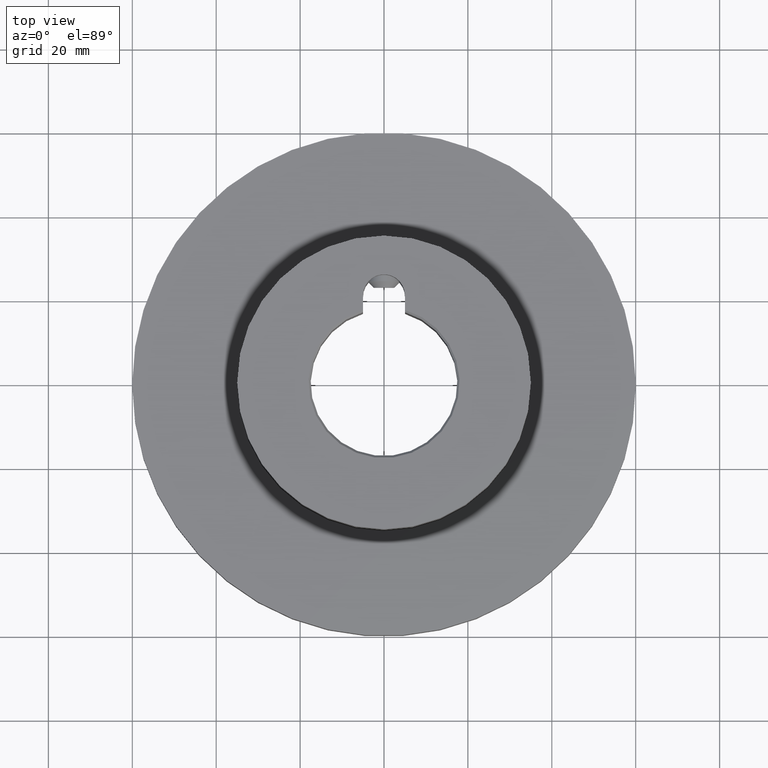
[diagram: clean part render]
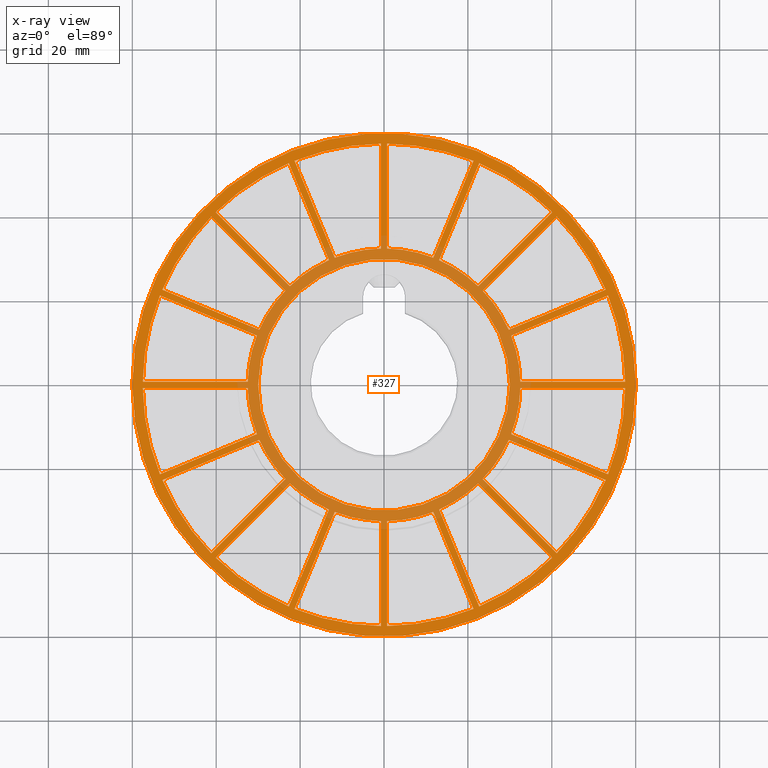
[diagram: x-ray — body ghosted, one internal face saturated and labeled with its STEP entity id]
A machine part, top view, then the same camera in x-ray: the body is ghosted and one INTERNAL B-rep face — a face not visible from any outside direction — is saturated and labeled: STEP entity #327.
In plain terms, the highlighted planar face has unit normal (0, 0, 1).
Its self-contained STEP definition (entity closure, byte-faithful):
#327 = ADVANCED_FACE( '', ( #528, #529, #530, #531, #532, #533, #534, #535, #536, #537, #538, #539, #540, #541, #542, #543, #544, #545 ), #546, .T. );
#528 = FACE_BOUND( '', #780, .T. );
#529 = FACE_BOUND( '', #781, .T. );
#530 = FACE_BOUND( '', #782, .T. );
#531 = FACE_BOUND( '', #783, .T. );
#532 = FACE_BOUND( '', #784, .T. );
#533 = FACE_BOUND( '', #785, .T. );
#534 = FACE_BOUND( '', #786, .T. );
#535 = FACE_BOUND( '', #787, .T. );
#536 = FACE_OUTER_BOUND( '', #788, .T. );
#537 = FACE_BOUND( '', #789, .T. );
#538 = FACE_BOUND( '', #790, .T. );
#539 = FACE_BOUND( '', #791, .T. );
#540 = FACE_BOUND( '', #792, .T. );
#541 = FACE_BOUND( '', #793, .T. );
#542 = FACE_BOUND( '', #794, .T. );
#543 = FACE_BOUND( '', #795, .T. );
#544 = FACE_BOUND( '', #796, .T. );
#545 = FACE_BOUND( '', #797, .T. );
#546 = PLANE( '', #798 );
#780 = EDGE_LOOP( '', ( #1147, #1148, #1149, #1150 ) );
#781 = EDGE_LOOP( '', ( #1151, #1152, #1153, #1154 ) );
#782 = EDGE_LOOP( '', ( #1155, #1156, #1157, #1158 ) );
#783 = EDGE_LOOP( '', ( #1159, #1160, #1161, #1162 ) );
#784 = EDGE_LOOP( '', ( #1163, #1164, #1165, #1166 ) );
#785 = EDGE_LOOP( '', ( #1167, #1168, #1169, #1170 ) );
#786 = EDGE_LOOP( '', ( #1171, #1172, #1173, #1174 ) );
#787 = EDGE_LOOP( '', ( #1175, #1176, #1177, #1178 ) );
#788 = EDGE_LOOP( '', ( #1179 ) );
#789 = EDGE_LOOP( '', ( #1180 ) );
#790 = EDGE_LOOP( '', ( #1181, #1182, #1183, #1184 ) );
#791 = EDGE_LOOP( '', ( #1185, #1186, #1187, #1188 ) );
#792 = EDGE_LOOP( '', ( #1189, #1190, #1191, #1192 ) );
#793 = EDGE_LOOP( '', ( #1193, #1194, #1195, #1196 ) );
#794 = EDGE_LOOP( '', ( #1197, #1198, #1199, #1200 ) );
#795 = EDGE_LOOP( '', ( #1201, #1202, #1203, #1204 ) );
#796 = EDGE_LOOP( '', ( #1205, #1206, #1207, #1208 ) );
#797 = EDGE_LOOP( '', ( #1209, #1210, #1211, #1212 ) );
#798 = AXIS2_PLACEMENT_3D( '', #1213, #1214, #1215 );
#1147 = ORIENTED_EDGE( '', *, *, #1870, .T. );
#1148 = ORIENTED_EDGE( '', *, *, #1871, .T. );
#1149 = ORIENTED_EDGE( '', *, *, #1872, .T. );
#1150 = ORIENTED_EDGE( '', *, *, #1873, .T. );
#1151 = ORIENTED_EDGE( '', *, *, #1874, .T. );
#1152 = ORIENTED_EDGE( '', *, *, #1875, .T. );
#1153 = ORIENTED_EDGE( '', *, *, #1876, .T. );
#1154 = ORIENTED_EDGE( '', *, *, #1877, .T. );
#1155 = ORIENTED_EDGE( '', *, *, #1878, .T. );
#1156 = ORIENTED_EDGE( '', *, *, #1879, .T. );
#1157 = ORIENTED_EDGE( '', *, *, #1880, .T. );
#1158 = ORIENTED_EDGE( '', *, *, #1881, .T. );
#1159 = ORIENTED_EDGE( '', *, *, #1882, .T. );
#1160 = ORIENTED_EDGE( '', *, *, #1883, .T. );
#1161 = ORIENTED_EDGE( '', *, *, #1884, .T. );
#1162 = ORIENTED_EDGE( '', *, *, #1885, .T. );
#1163 = ORIENTED_EDGE( '', *, *, #1886, .T. );
#1164 = ORIENTED_EDGE( '', *, *, #1887, .T. );
#1165 = ORIENTED_EDGE( '', *, *, #1888, .T. );
#1166 = ORIENTED_EDGE( '', *, *, #1889, .T. );
#1167 = ORIENTED_EDGE( '', *, *, #1890, .T. );
#1168 = ORIENTED_EDGE( '', *, *, #1891, .T. );
#1169 = ORIENTED_EDGE( '', *, *, #1892, .T. );
#1170 = ORIENTED_EDGE( '', *, *, #1893, .T. );
#1171 = ORIENTED_EDGE( '', *, *, #1894, .T. );
#1172 = ORIENTED_EDGE( '', *, *, #1895, .T. );
#1173 = ORIENTED_EDGE( '', *, *, #1896, .T. );
#1174 = ORIENTED_EDGE( '', *, *, #1897, .T. );
#1175 = ORIENTED_EDGE( '', *, *, #1898, .T. );
#1176 = ORIENTED_EDGE( '', *, *, #1899, .T. );
#1177 = ORIENTED_EDGE( '', *, *, #1900, .T. );
#1178 = ORIENTED_EDGE( '', *, *, #1901, .T. );
#1179 = ORIENTED_EDGE( '', *, *, #1864, .T. );
#1180 = ORIENTED_EDGE( '', *, *, #1902, .F. );
#1181 = ORIENTED_EDGE( '', *, *, #1903, .T. );
#1182 = ORIENTED_EDGE( '', *, *, #1904, .T. );
#1183 = ORIENTED_EDGE( '', *, *, #1905, .T. );
#1184 = ORIENTED_EDGE( '', *, *, #1906, .T. );
#1185 = ORIENTED_EDGE( '', *, *, #1907, .T. );
#1186 = ORIENTED_EDGE( '', *, *, #1908, .T. );
#1187 = ORIENTED_EDGE( '', *, *, #1909, .T. );
#1188 = ORIENTED_EDGE( '', *, *, #1910, .T. );
#1189 = ORIENTED_EDGE( '', *, *, #1911, .T. );
#1190 = ORIENTED_EDGE( '', *, *, #1912, .T. );
#1191 = ORIENTED_EDGE( '', *, *, #1913, .T. );
#1192 = ORIENTED_EDGE( '', *, *, #1914, .T. );
#1193 = ORIENTED_EDGE( '', *, *, #1915, .T. );
#1194 = ORIENTED_EDGE( '', *, *, #1916, .T. );
#1195 = ORIENTED_EDGE( '', *, *, #1917, .T. );
#1196 = ORIENTED_EDGE( '', *, *, #1918, .T. );
#1197 = ORIENTED_EDGE( '', *, *, #1919, .T. );
#1198 = ORIENTED_EDGE( '', *, *, #1920, .T. );
#1199 = ORIENTED_EDGE( '', *, *, #1921, .T. );
#1200 = ORIENTED_EDGE( '', *, *, #1922, .T. );
#1201 = ORIENTED_EDGE( '', *, *, #1923, .T. );
#1202 = ORIENTED_EDGE( '', *, *, #1924, .T. );
#1203 = ORIENTED_EDGE( '', *, *, #1925, .T. );
#1204 = ORIENTED_EDGE( '', *, *, #1926, .T. );
#1205 = ORIENTED_EDGE( '', *, *, #1927, .T. );
#1206 = ORIENTED_EDGE( '', *, *, #1928, .T. );
#1207 = ORIENTED_EDGE( '', *, *, #1929, .T. );
#1208 = ORIENTED_EDGE( '', *, *, #1930, .T. );
#1209 = ORIENTED_EDGE( '', *, *, #1867, .T. );
#1210 = ORIENTED_EDGE( '', *, *, #1931, .T. );
#1211 = ORIENTED_EDGE( '', *, *, #1932, .T. );
#1212 = ORIENTED_EDGE( '', *, *, #1869, .T. );
#1213 = CARTESIAN_POINT( '', ( 0.000000000000000, 0.000000000000000, 8.00000000000000 ) );
#1214 = DIRECTION( '', ( 0.000000000000000, 0.000000000000000, 1.00000000000000 ) );
#1215 = DIRECTION( '', ( 1.00000000000000, 0.000000000000000, 0.000000000000000 ) );
#1864 = EDGE_CURVE( '', #2205, #2205, #2206, .T. );
#1867 = EDGE_CURVE( '', #2207, #2209, #2211, .T. );
#1869 = EDGE_CURVE( '', #2212, #2207, #2214, .T. );
#1870 = EDGE_CURVE( '', #2215, #2216, #2217, .T. );
#1871 = EDGE_CURVE( '', #2216, #2218, #2219, .F. );
#1872 = EDGE_CURVE( '', #2218, #2220, #2221, .T. );
#1873 = EDGE_CURVE( '', #2220, #2215, #2222, .T. );
#1874 = EDGE_CURVE( '', #2223, #2224, #2225, .T. );
#1875 = EDGE_CURVE( '', #2224, #2226, #2227, .F. );
#1876 = EDGE_CURVE( '', #2226, #2228, #2229, .T. );
#1877 = EDGE_CURVE( '', #2228, #2223, #2230, .T. );
#1878 = EDGE_CURVE( '', #2231, #2232, #2233, .T. );
#1879 = EDGE_CURVE( '', #2232, #2234, #2235, .F. );
#1880 = EDGE_CURVE( '', #2234, #2236, #2237, .T. );
#1881 = EDGE_CURVE( '', #2236, #2231, #2238, .T. );
#1882 = EDGE_CURVE( '', #2239, #2240, #2241, .T. );
#1883 = EDGE_CURVE( '', #2240, #2242, #2243, .F. );
#1884 = EDGE_CURVE( '', #2242, #2244, #2245, .T. );
#1885 = EDGE_CURVE( '', #2244, #2239, #2246, .T. );
#1886 = EDGE_CURVE( '', #2247, #2248, #2249, .T. );
#1887 = EDGE_CURVE( '', #2248, #2250, #2251, .F. );
#1888 = EDGE_CURVE( '', #2250, #2252, #2253, .T. );
#1889 = EDGE_CURVE( '', #2252, #2247, #2254, .T. );
#1890 = EDGE_CURVE( '', #2255, #2256, #2257, .T. );
#1891 = EDGE_CURVE( '', #2256, #2258, #2259, .F. );
#1892 = EDGE_CURVE( '', #2258, #2260, #2261, .T. );
#1893 = EDGE_CURVE( '', #2260, #2255, #2262, .T. );
#1894 = EDGE_CURVE( '', #2263, #2264, #2265, .T. );
#1895 = EDGE_CURVE( '', #2264, #2266, #2267, .F. );
#1896 = EDGE_CURVE( '', #2266, #2268, #2269, .T. );
#1897 = EDGE_CURVE( '', #2268, #2263, #2270, .T. );
#1898 = EDGE_CURVE( '', #2271, #2272, #2273, .T. );
#1899 = EDGE_CURVE( '', #2272, #2274, #2275, .F. );
#1900 = EDGE_CURVE( '', #2274, #2276, #2277, .T. );
#1901 = EDGE_CURVE( '', #2276, #2271, #2278, .T. );
#1902 = EDGE_CURVE( '', #2279, #2279, #2280, .T. );
#1903 = EDGE_CURVE( '', #2281, #2282, #2283, .T. );
#1904 = EDGE_CURVE( '', #2282, #2284, #2285, .F. );
#1905 = EDGE_CURVE( '', #2284, #2286, #2287, .T. );
#1906 = EDGE_CURVE( '', #2286, #2281, #2288, .T. );
#1907 = EDGE_CURVE( '', #2289, #2290, #2291, .T. );
#1908 = EDGE_CURVE( '', #2290, #2292, #2293, .F. );
#1909 = EDGE_CURVE( '', #2292, #2294, #2295, .T. );
#1910 = EDGE_CURVE( '', #2294, #2289, #2296, .T. );
#1911 = EDGE_CURVE( '', #2297, #2298, #2299, .T. );
#1912 = EDGE_CURVE( '', #2298, #2300, #2301, .F. );
#1913 = EDGE_CURVE( '', #2300, #2302, #2303, .T. );
#1914 = EDGE_CURVE( '', #2302, #2297, #2304, .T. );
#1915 = EDGE_CURVE( '', #2305, #2306, #2307, .T. );
#1916 = EDGE_CURVE( '', #2306, #2308, #2309, .F. );
#1917 = EDGE_CURVE( '', #2308, #2310, #2311, .T. );
#1918 = EDGE_CURVE( '', #2310, #2305, #2312, .T. );
#1919 = EDGE_CURVE( '', #2313, #2314, #2315, .T. );
#1920 = EDGE_CURVE( '', #2314, #2316, #2317, .F. );
#1921 = EDGE_CURVE( '', #2316, #2318, #2319, .T. );
#1922 = EDGE_CURVE( '', #2318, #2313, #2320, .T. );
#1923 = EDGE_CURVE( '', #2321, #2322, #2323, .T. );
#1924 = EDGE_CURVE( '', #2322, #2324, #2325, .F. );
#1925 = EDGE_CURVE( '', #2324, #2326, #2327, .T. );
#1926 = EDGE_CURVE( '', #2326, #2321, #2328, .T. );
#1927 = EDGE_CURVE( '', #2329, #2330, #2331, .T. );
#1928 = EDGE_CURVE( '', #2330, #2332, #2333, .F. );
#1929 = EDGE_CURVE( '', #2332, #2334, #2335, .T. );
#1930 = EDGE_CURVE( '', #2334, #2329, #2336, .T. );
#1931 = EDGE_CURVE( '', #2209, #2337, #2338, .F. );
#1932 = EDGE_CURVE( '', #2337, #2212, #2339, .T. );
#2205 = VERTEX_POINT( '', #2810 );
#2206 = CIRCLE( '', #2811, 60.0000000000000 );
#2207 = VERTEX_POINT( '', #2812 );
#2209 = VERTEX_POINT( '', #2815 );
#2211 = LINE( '', #2818, #2819 );
#2212 = VERTEX_POINT( '', #2820 );
#2214 = CIRCLE( '', #2823, 32.5000000000000 );
#2215 = VERTEX_POINT( '', #2824 );
#2216 = VERTEX_POINT( '', #2825 );
#2217 = LINE( '', #2826, #2827 );
#2218 = VERTEX_POINT( '', #2828 );
#2219 = CIRCLE( '', #2829, 57.5000000000000 );
#2220 = VERTEX_POINT( '', #2830 );
#2221 = LINE( '', #2831, #2832 );
#2222 = CIRCLE( '', #2833, 32.5000000000000 );
#2223 = VERTEX_POINT( '', #2834 );
#2224 = VERTEX_POINT( '', #2835 );
#2225 = LINE( '', #2836, #2837 );
#2226 = VERTEX_POINT( '', #2838 );
#2227 = CIRCLE( '', #2839, 57.5000000000000 );
#2228 = VERTEX_POINT( '', #2840 );
#2229 = LINE( '', #2841, #2842 );
#2230 = CIRCLE( '', #2843, 32.5000000000000 );
#2231 = VERTEX_POINT( '', #2844 );
#2232 = VERTEX_POINT( '', #2845 );
#2233 = LINE( '', #2846, #2847 );
#2234 = VERTEX_POINT( '', #2848 );
#2235 = CIRCLE( '', #2849, 57.5000000000000 );
#2236 = VERTEX_POINT( '', #2850 );
#2237 = LINE( '', #2851, #2852 );
#2238 = CIRCLE( '', #2853, 32.5000000000000 );
#2239 = VERTEX_POINT( '', #2854 );
#2240 = VERTEX_POINT( '', #2855 );
#2241 = LINE( '', #2856, #2857 );
#2242 = VERTEX_POINT( '', #2858 );
#2243 = CIRCLE( '', #2859, 57.5000000000000 );
#2244 = VERTEX_POINT( '', #2860 );
#2245 = LINE( '', #2861, #2862 );
#2246 = CIRCLE( '', #2863, 32.5000000000000 );
#2247 = VERTEX_POINT( '', #2864 );
#2248 = VERTEX_POINT( '', #2865 );
#2249 = LINE( '', #2866, #2867 );
#2250 = VERTEX_POINT( '', #2868 );
#2251 = CIRCLE( '', #2869, 57.5000000000000 );
#2252 = VERTEX_POINT( '', #2870 );
#2253 = LINE( '', #2871, #2872 );
#2254 = CIRCLE( '', #2873, 32.5000000000000 );
#2255 = VERTEX_POINT( '', #2874 );
#2256 = VERTEX_POINT( '', #2875 );
#2257 = LINE( '', #2876, #2877 );
#2258 = VERTEX_POINT( '', #2878 );
#2259 = CIRCLE( '', #2879, 57.5000000000000 );
#2260 = VERTEX_POINT( '', #2880 );
#2261 = LINE( '', #2881, #2882 );
#2262 = CIRCLE( '', #2883, 32.5000000000000 );
#2263 = VERTEX_POINT( '', #2884 );
#2264 = VERTEX_POINT( '', #2885 );
#2265 = LINE( '', #2886, #2887 );
#2266 = VERTEX_POINT( '', #2888 );
#2267 = CIRCLE( '', #2889, 57.5000000000000 );
#2268 = VERTEX_POINT( '', #2890 );
#2269 = LINE( '', #2891, #2892 );
#2270 = CIRCLE( '', #2893, 32.5000000000000 );
#2271 = VERTEX_POINT( '', #2894 );
#2272 = VERTEX_POINT( '', #2895 );
#2273 = LINE( '', #2896, #2897 );
#2274 = VERTEX_POINT( '', #2898 );
#2275 = CIRCLE( '', #2899, 57.5000000000000 );
#2276 = VERTEX_POINT( '', #2900 );
#2277 = LINE( '', #2901, #2902 );
#2278 = CIRCLE( '', #2903, 32.5000000000000 );
#2279 = VERTEX_POINT( '', #2904 );
#2280 = CIRCLE( '', #2905, 30.0000000000000 );
#2281 = VERTEX_POINT( '', #2906 );
#2282 = VERTEX_POINT( '', #2907 );
#2283 = LINE( '', #2908, #2909 );
#2284 = VERTEX_POINT( '', #2910 );
#2285 = CIRCLE( '', #2911, 57.5000000000000 );
#2286 = VERTEX_POINT( '', #2912 );
#2287 = LINE( '', #2913, #2914 );
#2288 = CIRCLE( '', #2915, 32.5000000000000 );
#2289 = VERTEX_POINT( '', #2916 );
#2290 = VERTEX_POINT( '', #2917 );
#2291 = LINE( '', #2918, #2919 );
#2292 = VERTEX_POINT( '', #2920 );
#2293 = CIRCLE( '', #2921, 57.5000000000000 );
#2294 = VERTEX_POINT( '', #2922 );
#2295 = LINE( '', #2923, #2924 );
#2296 = CIRCLE( '', #2925, 32.5000000000000 );
#2297 = VERTEX_POINT( '', #2926 );
#2298 = VERTEX_POINT( '', #2927 );
#2299 = LINE( '', #2928, #2929 );
#2300 = VERTEX_POINT( '', #2930 );
#2301 = CIRCLE( '', #2931, 57.5000000000000 );
#2302 = VERTEX_POINT( '', #2932 );
#2303 = LINE( '', #2933, #2934 );
#2304 = CIRCLE( '', #2935, 32.5000000000000 );
#2305 = VERTEX_POINT( '', #2936 );
#2306 = VERTEX_POINT( '', #2937 );
#2307 = LINE( '', #2938, #2939 );
#2308 = VERTEX_POINT( '', #2940 );
#2309 = CIRCLE( '', #2941, 57.5000000000000 );
#2310 = VERTEX_POINT( '', #2942 );
#2311 = LINE( '', #2943, #2944 );
#2312 = CIRCLE( '', #2945, 32.5000000000000 );
#2313 = VERTEX_POINT( '', #2946 );
#2314 = VERTEX_POINT( '', #2947 );
#2315 = LINE( '', #2948, #2949 );
#2316 = VERTEX_POINT( '', #2950 );
#2317 = CIRCLE( '', #2951, 57.5000000000000 );
#2318 = VERTEX_POINT( '', #2952 );
#2319 = LINE( '', #2953, #2954 );
#2320 = CIRCLE( '', #2955, 32.5000000000000 );
#2321 = VERTEX_POINT( '', #2956 );
#2322 = VERTEX_POINT( '', #2957 );
#2323 = LINE( '', #2958, #2959 );
#2324 = VERTEX_POINT( '', #2960 );
#2325 = CIRCLE( '', #2961, 57.5000000000000 );
#2326 = VERTEX_POINT( '', #2962 );
#2327 = LINE( '', #2963, #2964 );
#2328 = CIRCLE( '', #2965, 32.5000000000000 );
#2329 = VERTEX_POINT( '', #2966 );
#2330 = VERTEX_POINT( '', #2967 );
#2331 = LINE( '', #2968, #2969 );
#2332 = VERTEX_POINT( '', #2970 );
#2333 = CIRCLE( '', #2971, 57.5000000000000 );
#2334 = VERTEX_POINT( '', #2972 );
#2335 = LINE( '', #2973, #2974 );
#2336 = CIRCLE( '', #2975, 32.5000000000000 );
#2337 = VERTEX_POINT( '', #2976 );
#2338 = CIRCLE( '', #2977, 57.5000000000000 );
#2339 = LINE( '', #2978, #2979 );
#2810 = CARTESIAN_POINT( '', ( 60.0000000000000, 0.000000000000000, 8.00000000000000 ) );
#2811 = AXIS2_PLACEMENT_3D( '', #3401, #3402, #3403 );
#2812 = CARTESIAN_POINT( '', ( 32.4913450014000, -0.749999999999987, 7.99999999999999 ) );
#2815 = CARTESIAN_POINT( '', ( 57.4951084875922, -0.749999999999985, 8.00000000000000 ) );
#2818 = CARTESIAN_POINT( '', ( 2.08166817117217E-016, -0.750000000000001, 8.00000000000000 ) );
#2819 = VECTOR( '', #3406, 1000.00000000000 );
#2820 = CARTESIAN_POINT( '', ( 30.3051012048302, -11.7409897779106, 7.99999999999999 ) );
#2823 = AXIS2_PLACEMENT_3D( '', #3408, #3409, #3410 );
#2824 = CARTESIAN_POINT( '', ( 29.7310760562825, -13.1268090766775, 7.99999999999999 ) );
#2825 = CARTESIAN_POINT( '', ( 52.8315413769286, -22.6953351096185, 8.00000000000000 ) );
#2826 = CARTESIAN_POINT( '', ( -0.287012574273818, -0.692909649383467, 8.00000000000000 ) );
#2827 = VECTOR( '', #3411, 1000.00000000000 );
#2828 = CARTESIAN_POINT( '', ( 41.1855111825226, -40.1248510107428, 7.99999999999999 ) );
#2829 = AXIS2_PLACEMENT_3D( '', #3412, #3413, #3414 );
#2830 = CARTESIAN_POINT( '', ( 23.5051804662515, -22.4445202944717, 7.99999999999999 ) );
#2831 = CARTESIAN_POINT( '', ( 0.530330085889909, 0.530330085889909, 8.00000000000000 ) );
#2832 = VECTOR( '', #3415, 1000.00000000000 );
#2833 = AXIS2_PLACEMENT_3D( '', #3416, #3417, #3418 );
#2834 = CARTESIAN_POINT( '', ( 11.7409897779106, -30.3051012048302, 7.99999999999999 ) );
#2835 = CARTESIAN_POINT( '', ( 21.3095158108515, -53.4055665254763, 8.00000000000000 ) );
#2836 = CARTESIAN_POINT( '', ( -0.692909649383467, -0.287012574273818, 8.00000000000000 ) );
#2837 = VECTOR( '', #3419, 1000.00000000000 );
#2838 = CARTESIAN_POINT( '', ( 0.749999999999989, -57.4951084875922, 7.99999999999999 ) );
#2839 = AXIS2_PLACEMENT_3D( '', #3420, #3421, #3422 );
#2840 = CARTESIAN_POINT( '', ( 0.749999999999994, -32.4913450014000, 7.99999999999999 ) );
#2841 = CARTESIAN_POINT( '', ( 0.750000000000000, -1.37772764904077E-016, 8.00000000000000 ) );
#2842 = VECTOR( '', #3423, 1000.00000000000 );
#2843 = AXIS2_PLACEMENT_3D( '', #3424, #3425, #3426 );
#2844 = CARTESIAN_POINT( '', ( -13.1268090766775, -29.7310760562825, 7.99999999999999 ) );
#2845 = CARTESIAN_POINT( '', ( -22.6953351096185, -52.8315413769286, 8.00000000000000 ) );
#2846 = CARTESIAN_POINT( '', ( -0.692909649383467, 0.287012574273818, 8.00000000000000 ) );
#2847 = VECTOR( '', #3427, 1000.00000000000 );
#2848 = CARTESIAN_POINT( '', ( -40.1248510107428, -41.1855111825226, 7.99999999999999 ) );
#2849 = AXIS2_PLACEMENT_3D( '', #3428, #3429, #3430 );
#2850 = CARTESIAN_POINT( '', ( -22.4445202944717, -23.5051804662515, 7.99999999999999 ) );
#2851 = CARTESIAN_POINT( '', ( 0.530330085889909, -0.530330085889909, 8.00000000000000 ) );
#2852 = VECTOR( '', #3431, 1000.00000000000 );
#2853 = AXIS2_PLACEMENT_3D( '', #3432, #3433, #3434 );
#2854 = CARTESIAN_POINT( '', ( -30.3051012048302, -11.7409897779106, 7.99999999999999 ) );
#2855 = CARTESIAN_POINT( '', ( -53.4055665254763, -21.3095158108515, 8.00000000000000 ) );
#2856 = CARTESIAN_POINT( '', ( -0.287012574273818, 0.692909649383467, 8.00000000000000 ) );
#2857 = VECTOR( '', #3435, 1000.00000000000 );
#2858 = CARTESIAN_POINT( '', ( -57.4951084875922, -0.749999999999993, 7.99999999999999 ) );
#2859 = AXIS2_PLACEMENT_3D( '', #3436, #3437, #3438 );
#2860 = CARTESIAN_POINT( '', ( -32.4913450014000, -0.749999999999996, 7.99999999999999 ) );
#2861 = CARTESIAN_POINT( '', ( -9.18485099360515E-017, -0.750000000000000, 8.00000000000000 ) );
#2862 = VECTOR( '', #3439, 1000.00000000000 );
#2863 = AXIS2_PLACEMENT_3D( '', #3440, #3441, #3442 );
#2864 = CARTESIAN_POINT( '', ( -29.7310760562825, 13.1268090766775, 7.99999999999999 ) );
#2865 = CARTESIAN_POINT( '', ( -52.8315413769286, 22.6953351096185, 8.00000000000000 ) );
#2866 = CARTESIAN_POINT( '', ( 0.287012574273819, 0.692909649383469, 8.00000000000000 ) );
#2867 = VECTOR( '', #3443, 1000.00000000000 );
#2868 = CARTESIAN_POINT( '', ( -41.1855111825226, 40.1248510107428, 7.99999999999999 ) );
#2869 = AXIS2_PLACEMENT_3D( '', #3444, #3445, #3446 );
#2870 = CARTESIAN_POINT( '', ( -23.5051804662515, 22.4445202944717, 7.99999999999999 ) );
#2871 = CARTESIAN_POINT( '', ( -0.530330085889909, -0.530330085889909, 8.00000000000000 ) );
#2872 = VECTOR( '', #3447, 1000.00000000000 );
#2873 = AXIS2_PLACEMENT_3D( '', #3448, #3449, #3450 );
#2874 = CARTESIAN_POINT( '', ( -11.7409897779106, 30.3051012048302, 7.99999999999999 ) );
#2875 = CARTESIAN_POINT( '', ( -21.3095158108515, 53.4055665254763, 8.00000000000000 ) );
#2876 = CARTESIAN_POINT( '', ( 0.692909649383467, 0.287012574273818, 8.00000000000000 ) );
#2877 = VECTOR( '', #3451, 1000.00000000000 );
#2878 = CARTESIAN_POINT( '', ( -0.749999999999997, 57.4951084875922, 7.99999999999999 ) );
#2879 = AXIS2_PLACEMENT_3D( '', #3452, #3453, #3454 );
#2880 = CARTESIAN_POINT( '', ( -0.749999999999998, 32.4913450014000, 7.99999999999999 ) );
#2881 = CARTESIAN_POINT( '', ( -0.750000000000000, 4.59242549680257E-017, 8.00000000000000 ) );
#2882 = VECTOR( '', #3455, 1000.00000000000 );
#2883 = AXIS2_PLACEMENT_3D( '', #3456, #3457, #3458 );
#2884 = CARTESIAN_POINT( '', ( 13.1268090766775, 29.7310760562825, 7.99999999999999 ) );
#2885 = CARTESIAN_POINT( '', ( 22.6953351096185, 52.8315413769286, 8.00000000000000 ) );
#2886 = CARTESIAN_POINT( '', ( 0.692909649383469, -0.287012574273819, 8.00000000000000 ) );
#2887 = VECTOR( '', #3459, 1000.00000000000 );
#2888 = CARTESIAN_POINT( '', ( 40.1248510107428, 41.1855111825226, 7.99999999999999 ) );
#2889 = AXIS2_PLACEMENT_3D( '', #3460, #3461, #3462 );
#2890 = CARTESIAN_POINT( '', ( 22.4445202944717, 23.5051804662515, 7.99999999999999 ) );
#2891 = CARTESIAN_POINT( '', ( -0.530330085889909, 0.530330085889909, 8.00000000000000 ) );
#2892 = VECTOR( '', #3463, 1000.00000000000 );
#2893 = AXIS2_PLACEMENT_3D( '', #3464, #3465, #3466 );
#2894 = CARTESIAN_POINT( '', ( 30.3051012048302, 11.7409897779106, 7.99999999999999 ) );
#2895 = CARTESIAN_POINT( '', ( 53.4055665254763, 21.3095158108515, 8.00000000000000 ) );
#2896 = CARTESIAN_POINT( '', ( 0.287012574273818, -0.692909649383467, 8.00000000000000 ) );
#2897 = VECTOR( '', #3467, 1000.00000000000 );
#2898 = CARTESIAN_POINT( '', ( 57.4951084875922, 0.750000000000000, 7.99999999999999 ) );
#2899 = AXIS2_PLACEMENT_3D( '', #3468, #3469, #3470 );
#2900 = CARTESIAN_POINT( '', ( 32.4913450014000, 0.750000000000000, 7.99999999999999 ) );
#2901 = CARTESIAN_POINT( '', ( 0.000000000000000, 0.750000000000000, 8.00000000000000 ) );
#2902 = VECTOR( '', #3471, 1000.00000000000 );
#2903 = AXIS2_PLACEMENT_3D( '', #3472, #3473, #3474 );
#2904 = CARTESIAN_POINT( '', ( 30.0000000000000, 0.000000000000000, 8.00000000000000 ) );
#2905 = AXIS2_PLACEMENT_3D( '', #3475, #3476, #3477 );
#2906 = CARTESIAN_POINT( '', ( 23.5051804662515, 22.4445202944717, 7.99999999999999 ) );
#2907 = CARTESIAN_POINT( '', ( 41.1855111825226, 40.1248510107428, 8.00000000000000 ) );
#2908 = CARTESIAN_POINT( '', ( 0.530330085889914, -0.530330085889913, 8.00000000000000 ) );
#2909 = VECTOR( '', #3478, 1000.00000000000 );
#2910 = CARTESIAN_POINT( '', ( 52.8315413769286, 22.6953351096185, 7.99999999999999 ) );
#2911 = AXIS2_PLACEMENT_3D( '', #3479, #3480, #3481 );
#2912 = CARTESIAN_POINT( '', ( 29.7310760562826, 13.1268090766775, 7.99999999999999 ) );
#2913 = CARTESIAN_POINT( '', ( -0.287012574273818, 0.692909649383466, 8.00000000000000 ) );
#2914 = VECTOR( '', #3482, 1000.00000000000 );
#2915 = AXIS2_PLACEMENT_3D( '', #3483, #3484, #3485 );
#2916 = CARTESIAN_POINT( '', ( 0.749999999999997, 32.4913450014000, 7.99999999999999 ) );
#2917 = CARTESIAN_POINT( '', ( 0.750000000000002, 57.4951084875922, 8.00000000000000 ) );
#2918 = CARTESIAN_POINT( '', ( 0.750000000000002, 0.000000000000000, 8.00000000000000 ) );
#2919 = VECTOR( '', #3486, 1000.00000000000 );
#2920 = CARTESIAN_POINT( '', ( 21.3095158108515, 53.4055665254762, 7.99999999999999 ) );
#2921 = AXIS2_PLACEMENT_3D( '', #3487, #3488, #3489 );
#2922 = CARTESIAN_POINT( '', ( 11.7409897779106, 30.3051012048302, 7.99999999999999 ) );
#2923 = CARTESIAN_POINT( '', ( -0.692909649383466, 0.287012574273818, 8.00000000000000 ) );
#2924 = VECTOR( '', #3490, 1000.00000000000 );
#2925 = AXIS2_PLACEMENT_3D( '', #3491, #3492, #3493 );
#2926 = CARTESIAN_POINT( '', ( -22.4445202944717, 23.5051804662515, 7.99999999999999 ) );
#2927 = CARTESIAN_POINT( '', ( -40.1248510107428, 41.1855111825226, 8.00000000000000 ) );
#2928 = CARTESIAN_POINT( '', ( 0.530330085889913, 0.530330085889914, 8.00000000000000 ) );
#2929 = VECTOR( '', #3494, 1000.00000000000 );
#2930 = CARTESIAN_POINT( '', ( -22.6953351096185, 52.8315413769286, 7.99999999999999 ) );
#2931 = AXIS2_PLACEMENT_3D( '', #3495, #3496, #3497 );
#2932 = CARTESIAN_POINT( '', ( -13.1268090766775, 29.7310760562826, 7.99999999999999 ) );
#2933 = CARTESIAN_POINT( '', ( -0.692909649383466, -0.287012574273818, 8.00000000000000 ) );
#2934 = VECTOR( '', #3498, 1000.00000000000 );
#2935 = AXIS2_PLACEMENT_3D( '', #3499, #3500, #3501 );
#2936 = CARTESIAN_POINT( '', ( -32.4913450014000, 0.749999999999999, 7.99999999999999 ) );
#2937 = CARTESIAN_POINT( '', ( -57.4951084875922, 0.750000000000004, 8.00000000000000 ) );
#2938 = CARTESIAN_POINT( '', ( 0.000000000000000, 0.750000000000004, 8.00000000000000 ) );
#2939 = VECTOR( '', #3502, 1000.00000000000 );
#2940 = CARTESIAN_POINT( '', ( -53.4055665254762, 21.3095158108515, 7.99999999999999 ) );
#2941 = AXIS2_PLACEMENT_3D( '', #3503, #3504, #3505 );
#2942 = CARTESIAN_POINT( '', ( -30.3051012048302, 11.7409897779106, 7.99999999999999 ) );
#2943 = CARTESIAN_POINT( '', ( -0.287012574273819, -0.692909649383469, 8.00000000000000 ) );
#2944 = VECTOR( '', #3506, 1000.00000000000 );
#2945 = AXIS2_PLACEMENT_3D( '', #3507, #3508, #3509 );
#2946 = CARTESIAN_POINT( '', ( -23.5051804662515, -22.4445202944717, 7.99999999999999 ) );
#2947 = CARTESIAN_POINT( '', ( -41.1855111825226, -40.1248510107428, 8.00000000000000 ) );
#2948 = CARTESIAN_POINT( '', ( -0.530330085889913, 0.530330085889914, 8.00000000000000 ) );
#2949 = VECTOR( '', #3510, 1000.00000000000 );
#2950 = CARTESIAN_POINT( '', ( -52.8315413769286, -22.6953351096185, 7.99999999999999 ) );
#2951 = AXIS2_PLACEMENT_3D( '', #3511, #3512, #3513 );
#2952 = CARTESIAN_POINT( '', ( -29.7310760562826, -13.1268090766775, 7.99999999999999 ) );
#2953 = CARTESIAN_POINT( '', ( 0.287012574273818, -0.692909649383466, 8.00000000000000 ) );
#2954 = VECTOR( '', #3514, 1000.00000000000 );
#2955 = AXIS2_PLACEMENT_3D( '', #3515, #3516, #3517 );
#2956 = CARTESIAN_POINT( '', ( -0.749999999999985, -32.4913450014000, 7.99999999999999 ) );
#2957 = CARTESIAN_POINT( '', ( -0.749999999999982, -57.4951084875922, 8.00000000000000 ) );
#2958 = CARTESIAN_POINT( '', ( -0.750000000000001, -2.49800180540661E-016, 8.00000000000000 ) );
#2959 = VECTOR( '', #3518, 1000.00000000000 );
#2960 = CARTESIAN_POINT( '', ( -21.3095158108515, -53.4055665254763, 7.99999999999999 ) );
#2961 = AXIS2_PLACEMENT_3D( '', #3519, #3520, #3521 );
#2962 = CARTESIAN_POINT( '', ( -11.7409897779106, -30.3051012048302, 7.99999999999999 ) );
#2963 = CARTESIAN_POINT( '', ( 0.692909649383466, -0.287012574273817, 8.00000000000000 ) );
#2964 = VECTOR( '', #3522, 1000.00000000000 );
#2965 = AXIS2_PLACEMENT_3D( '', #3523, #3524, #3525 );
#2966 = CARTESIAN_POINT( '', ( 22.4445202944717, -23.5051804662515, 7.99999999999999 ) );
#2967 = CARTESIAN_POINT( '', ( 40.1248510107428, -41.1855111825226, 8.00000000000000 ) );
#2968 = CARTESIAN_POINT( '', ( -0.530330085889911, -0.530330085889911, 8.00000000000000 ) );
#2969 = VECTOR( '', #3526, 1000.00000000000 );
#2970 = CARTESIAN_POINT( '', ( 22.6953351096185, -52.8315413769286, 7.99999999999999 ) );
#2971 = AXIS2_PLACEMENT_3D( '', #3527, #3528, #3529 );
#2972 = CARTESIAN_POINT( '', ( 13.1268090766775, -29.7310760562825, 7.99999999999999 ) );
#2973 = CARTESIAN_POINT( '', ( 0.692909649383466, 0.287012574273818, 8.00000000000000 ) );
#2974 = VECTOR( '', #3530, 1000.00000000000 );
#2975 = AXIS2_PLACEMENT_3D( '', #3531, #3532, #3533 );
#2976 = CARTESIAN_POINT( '', ( 53.4055665254763, -21.3095158108515, 7.99999999999999 ) );
#2977 = AXIS2_PLACEMENT_3D( '', #3534, #3535, #3536 );
#2978 = CARTESIAN_POINT( '', ( 0.287012574273817, 0.692909649383466, 8.00000000000000 ) );
#2979 = VECTOR( '', #3537, 1000.00000000000 );
#3401 = CARTESIAN_POINT( '', ( 0.000000000000000, 0.000000000000000, 8.00000000000000 ) );
#3402 = DIRECTION( '', ( 0.000000000000000, 0.000000000000000, 1.00000000000000 ) );
#3403 = DIRECTION( '', ( 1.00000000000000, 0.000000000000000, 0.000000000000000 ) );
#3406 = DIRECTION( '', ( 1.00000000000000, 2.77555756156289E-016, -0.000000000000000 ) );
#3408 = CARTESIAN_POINT( '', ( 0.000000000000000, 0.000000000000000, 7.99999999999999 ) );
#3409 = DIRECTION( '', ( 0.000000000000000, 0.000000000000000, 1.00000000000000 ) );
#3410 = DIRECTION( '', ( 1.00000000000000, 0.000000000000000, -0.000000000000000 ) );
#3411 = DIRECTION( '', ( 0.923879532511287, -0.382683432365090, 0.000000000000000 ) );
#3412 = CARTESIAN_POINT( '', ( 0.000000000000000, 0.000000000000000, 7.99999999999999 ) );
#3413 = DIRECTION( '', ( 0.000000000000000, 0.000000000000000, 1.00000000000000 ) );
#3414 = DIRECTION( '', ( 1.00000000000000, 0.000000000000000, -0.000000000000000 ) );
#3415 = DIRECTION( '', ( -0.707106781186547, 0.707106781186548, 0.000000000000000 ) );
#3416 = CARTESIAN_POINT( '', ( 0.000000000000000, 0.000000000000000, 7.99999999999999 ) );
#3417 = DIRECTION( '', ( 0.000000000000000, 0.000000000000000, 1.00000000000000 ) );
#3418 = DIRECTION( '', ( 1.00000000000000, 0.000000000000000, -0.000000000000000 ) );
#3419 = DIRECTION( '', ( 0.382683432365090, -0.923879532511287, 0.000000000000000 ) );
#3420 = CARTESIAN_POINT( '', ( 0.000000000000000, 0.000000000000000, 7.99999999999999 ) );
#3421 = DIRECTION( '', ( 0.000000000000000, 0.000000000000000, 1.00000000000000 ) );
#3422 = DIRECTION( '', ( 1.00000000000000, 0.000000000000000, -0.000000000000000 ) );
#3423 = DIRECTION( '', ( 1.83697019872103E-016, 1.00000000000000, -0.000000000000000 ) );
#3424 = CARTESIAN_POINT( '', ( 0.000000000000000, 0.000000000000000, 7.99999999999999 ) );
#3425 = DIRECTION( '', ( 0.000000000000000, 0.000000000000000, 1.00000000000000 ) );
#3426 = DIRECTION( '', ( 1.00000000000000, 0.000000000000000, -0.000000000000000 ) );
#3427 = DIRECTION( '', ( -0.382683432365090, -0.923879532511287, 0.000000000000000 ) );
#3428 = CARTESIAN_POINT( '', ( 0.000000000000000, 0.000000000000000, 7.99999999999999 ) );
#3429 = DIRECTION( '', ( 0.000000000000000, 0.000000000000000, 1.00000000000000 ) );
#3430 = DIRECTION( '', ( 1.00000000000000, 0.000000000000000, -0.000000000000000 ) );
#3431 = DIRECTION( '', ( 0.707106781186548, 0.707106781186547, -0.000000000000000 ) );
#3432 = CARTESIAN_POINT( '', ( 0.000000000000000, 0.000000000000000, 7.99999999999999 ) );
#3433 = DIRECTION( '', ( 0.000000000000000, 0.000000000000000, 1.00000000000000 ) );
#3434 = DIRECTION( '', ( 1.00000000000000, 0.000000000000000, -0.000000000000000 ) );
#3435 = DIRECTION( '', ( -0.923879532511287, -0.382683432365090, 0.000000000000000 ) );
#3436 = CARTESIAN_POINT( '', ( 0.000000000000000, 0.000000000000000, 7.99999999999999 ) );
#3437 = DIRECTION( '', ( 0.000000000000000, 0.000000000000000, 1.00000000000000 ) );
#3438 = DIRECTION( '', ( 1.00000000000000, 0.000000000000000, -0.000000000000000 ) );
#3439 = DIRECTION( '', ( 1.00000000000000, -1.22464679914735E-016, 0.000000000000000 ) );
#3440 = CARTESIAN_POINT( '', ( 0.000000000000000, 0.000000000000000, 7.99999999999999 ) );
#3441 = DIRECTION( '', ( 0.000000000000000, 0.000000000000000, 1.00000000000000 ) );
#3442 = DIRECTION( '', ( 1.00000000000000, 0.000000000000000, -0.000000000000000 ) );
#3443 = DIRECTION( '', ( -0.923879532511287, 0.382683432365090, 0.000000000000000 ) );
#3444 = CARTESIAN_POINT( '', ( 0.000000000000000, 0.000000000000000, 7.99999999999999 ) );
#3445 = DIRECTION( '', ( 0.000000000000000, 0.000000000000000, 1.00000000000000 ) );
#3446 = DIRECTION( '', ( 1.00000000000000, 0.000000000000000, -0.000000000000000 ) );
#3447 = DIRECTION( '', ( 0.707106781186547, -0.707106781186548, 0.000000000000000 ) );
#3448 = CARTESIAN_POINT( '', ( 0.000000000000000, 0.000000000000000, 7.99999999999999 ) );
#3449 = DIRECTION( '', ( 0.000000000000000, 0.000000000000000, 1.00000000000000 ) );
#3450 = DIRECTION( '', ( 1.00000000000000, 0.000000000000000, -0.000000000000000 ) );
#3451 = DIRECTION( '', ( -0.382683432365090, 0.923879532511287, 0.000000000000000 ) );
#3452 = CARTESIAN_POINT( '', ( 0.000000000000000, 0.000000000000000, 7.99999999999999 ) );
#3453 = DIRECTION( '', ( 0.000000000000000, 0.000000000000000, 1.00000000000000 ) );
#3454 = DIRECTION( '', ( 1.00000000000000, 0.000000000000000, -0.000000000000000 ) );
#3455 = DIRECTION( '', ( -6.12323399573677E-017, -1.00000000000000, 0.000000000000000 ) );
#3456 = CARTESIAN_POINT( '', ( 0.000000000000000, 0.000000000000000, 7.99999999999999 ) );
#3457 = DIRECTION( '', ( 0.000000000000000, 0.000000000000000, 1.00000000000000 ) );
#3458 = DIRECTION( '', ( 1.00000000000000, 0.000000000000000, -0.000000000000000 ) );
#3459 = DIRECTION( '', ( 0.382683432365090, 0.923879532511287, -0.000000000000000 ) );
#3460 = CARTESIAN_POINT( '', ( 0.000000000000000, 0.000000000000000, 7.99999999999999 ) );
#3461 = DIRECTION( '', ( 0.000000000000000, 0.000000000000000, 1.00000000000000 ) );
#3462 = DIRECTION( '', ( 1.00000000000000, 0.000000000000000, -0.000000000000000 ) );
#3463 = DIRECTION( '', ( -0.707106781186548, -0.707106781186547, 0.000000000000000 ) );
#3464 = CARTESIAN_POINT( '', ( 0.000000000000000, 0.000000000000000, 7.99999999999999 ) );
#3465 = DIRECTION( '', ( 0.000000000000000, 0.000000000000000, 1.00000000000000 ) );
#3466 = DIRECTION( '', ( 1.00000000000000, 0.000000000000000, -0.000000000000000 ) );
#3467 = DIRECTION( '', ( 0.923879532511287, 0.382683432365090, -0.000000000000000 ) );
#3468 = CARTESIAN_POINT( '', ( 0.000000000000000, 0.000000000000000, 7.99999999999999 ) );
#3469 = DIRECTION( '', ( 0.000000000000000, 0.000000000000000, 1.00000000000000 ) );
#3470 = DIRECTION( '', ( 1.00000000000000, 0.000000000000000, -0.000000000000000 ) );
#3471 = DIRECTION( '', ( -1.00000000000000, 0.000000000000000, 0.000000000000000 ) );
#3472 = CARTESIAN_POINT( '', ( 0.000000000000000, 0.000000000000000, 7.99999999999999 ) );
#3473 = DIRECTION( '', ( 0.000000000000000, 0.000000000000000, 1.00000000000000 ) );
#3474 = DIRECTION( '', ( 1.00000000000000, 0.000000000000000, -0.000000000000000 ) );
#3475 = CARTESIAN_POINT( '', ( 0.000000000000000, 0.000000000000000, 8.00000000000000 ) );
#3476 = DIRECTION( '', ( 0.000000000000000, 0.000000000000000, 1.00000000000000 ) );
#3477 = DIRECTION( '', ( 1.00000000000000, 0.000000000000000, 0.000000000000000 ) );
#3478 = DIRECTION( '', ( 0.707106781186547, 0.707106781186548, -0.000000000000000 ) );
#3479 = CARTESIAN_POINT( '', ( 0.000000000000000, 0.000000000000000, 7.99999999999999 ) );
#3480 = DIRECTION( '', ( 0.000000000000000, 0.000000000000000, 1.00000000000000 ) );
#3481 = DIRECTION( '', ( 1.00000000000000, 0.000000000000000, -0.000000000000000 ) );
#3482 = DIRECTION( '', ( -0.923879532511287, -0.382683432365090, 0.000000000000000 ) );
#3483 = CARTESIAN_POINT( '', ( 0.000000000000000, 0.000000000000000, 7.99999999999999 ) );
#3484 = DIRECTION( '', ( 0.000000000000000, 0.000000000000000, 1.00000000000000 ) );
#3485 = DIRECTION( '', ( 1.00000000000000, 0.000000000000000, -0.000000000000000 ) );
#3486 = DIRECTION( '', ( 0.000000000000000, 1.00000000000000, 0.000000000000000 ) );
#3487 = CARTESIAN_POINT( '', ( 0.000000000000000, 0.000000000000000, 7.99999999999999 ) );
#3488 = DIRECTION( '', ( 0.000000000000000, 0.000000000000000, 1.00000000000000 ) );
#3489 = DIRECTION( '', ( 1.00000000000000, 0.000000000000000, -0.000000000000000 ) );
#3490 = DIRECTION( '', ( -0.382683432365090, -0.923879532511287, 0.000000000000000 ) );
#3491 = CARTESIAN_POINT( '', ( 0.000000000000000, 0.000000000000000, 7.99999999999999 ) );
#3492 = DIRECTION( '', ( 0.000000000000000, 0.000000000000000, 1.00000000000000 ) );
#3493 = DIRECTION( '', ( 1.00000000000000, 0.000000000000000, -0.000000000000000 ) );
#3494 = DIRECTION( '', ( -0.707106781186548, 0.707106781186547, 0.000000000000000 ) );
#3495 = CARTESIAN_POINT( '', ( 0.000000000000000, 0.000000000000000, 7.99999999999999 ) );
#3496 = DIRECTION( '', ( 0.000000000000000, 0.000000000000000, 1.00000000000000 ) );
#3497 = DIRECTION( '', ( 1.00000000000000, 0.000000000000000, -0.000000000000000 ) );
#3498 = DIRECTION( '', ( 0.382683432365090, -0.923879532511287, 0.000000000000000 ) );
#3499 = CARTESIAN_POINT( '', ( 0.000000000000000, 0.000000000000000, 7.99999999999999 ) );
#3500 = DIRECTION( '', ( 0.000000000000000, 0.000000000000000, 1.00000000000000 ) );
#3501 = DIRECTION( '', ( 1.00000000000000, 0.000000000000000, -0.000000000000000 ) );
#3502 = DIRECTION( '', ( -1.00000000000000, 0.000000000000000, 0.000000000000000 ) );
#3503 = CARTESIAN_POINT( '', ( 0.000000000000000, 0.000000000000000, 7.99999999999999 ) );
#3504 = DIRECTION( '', ( 0.000000000000000, 0.000000000000000, 1.00000000000000 ) );
#3505 = DIRECTION( '', ( 1.00000000000000, 0.000000000000000, -0.000000000000000 ) );
#3506 = DIRECTION( '', ( 0.923879532511287, -0.382683432365090, 0.000000000000000 ) );
#3507 = CARTESIAN_POINT( '', ( 0.000000000000000, 0.000000000000000, 7.99999999999999 ) );
#3508 = DIRECTION( '', ( 0.000000000000000, 0.000000000000000, 1.00000000000000 ) );
#3509 = DIRECTION( '', ( 1.00000000000000, 0.000000000000000, -0.000000000000000 ) );
#3510 = DIRECTION( '', ( -0.707106781186548, -0.707106781186547, 0.000000000000000 ) );
#3511 = CARTESIAN_POINT( '', ( 0.000000000000000, 0.000000000000000, 7.99999999999999 ) );
#3512 = DIRECTION( '', ( 0.000000000000000, 0.000000000000000, 1.00000000000000 ) );
#3513 = DIRECTION( '', ( 1.00000000000000, 0.000000000000000, -0.000000000000000 ) );
#3514 = DIRECTION( '', ( 0.923879532511287, 0.382683432365090, -0.000000000000000 ) );
#3515 = CARTESIAN_POINT( '', ( 0.000000000000000, 0.000000000000000, 7.99999999999999 ) );
#3516 = DIRECTION( '', ( 0.000000000000000, 0.000000000000000, 1.00000000000000 ) );
#3517 = DIRECTION( '', ( 1.00000000000000, 0.000000000000000, -0.000000000000000 ) );
#3518 = DIRECTION( '', ( 3.33066907387547E-016, -1.00000000000000, 0.000000000000000 ) );
#3519 = CARTESIAN_POINT( '', ( 0.000000000000000, 0.000000000000000, 7.99999999999999 ) );
#3520 = DIRECTION( '', ( 0.000000000000000, 0.000000000000000, 1.00000000000000 ) );
#3521 = DIRECTION( '', ( 1.00000000000000, 0.000000000000000, -0.000000000000000 ) );
#3522 = DIRECTION( '', ( 0.382683432365090, 0.923879532511287, -0.000000000000000 ) );
#3523 = CARTESIAN_POINT( '', ( 0.000000000000000, 0.000000000000000, 7.99999999999999 ) );
#3524 = DIRECTION( '', ( 0.000000000000000, 0.000000000000000, 1.00000000000000 ) );
#3525 = DIRECTION( '', ( 1.00000000000000, 0.000000000000000, -0.000000000000000 ) );
#3526 = DIRECTION( '', ( 0.707106781186548, -0.707106781186547, 0.000000000000000 ) );
#3527 = CARTESIAN_POINT( '', ( 0.000000000000000, 0.000000000000000, 7.99999999999999 ) );
#3528 = DIRECTION( '', ( 0.000000000000000, 0.000000000000000, 1.00000000000000 ) );
#3529 = DIRECTION( '', ( 1.00000000000000, 0.000000000000000, -0.000000000000000 ) );
#3530 = DIRECTION( '', ( -0.382683432365090, 0.923879532511287, 0.000000000000000 ) );
#3531 = CARTESIAN_POINT( '', ( 0.000000000000000, 0.000000000000000, 7.99999999999999 ) );
#3532 = DIRECTION( '', ( 0.000000000000000, 0.000000000000000, 1.00000000000000 ) );
#3533 = DIRECTION( '', ( 1.00000000000000, 0.000000000000000, -0.000000000000000 ) );
#3534 = CARTESIAN_POINT( '', ( 0.000000000000000, 0.000000000000000, 7.99999999999999 ) );
#3535 = DIRECTION( '', ( 0.000000000000000, 0.000000000000000, 1.00000000000000 ) );
#3536 = DIRECTION( '', ( 1.00000000000000, 0.000000000000000, -0.000000000000000 ) );
#3537 = DIRECTION( '', ( -0.923879532511287, 0.382683432365090, 0.000000000000000 ) );